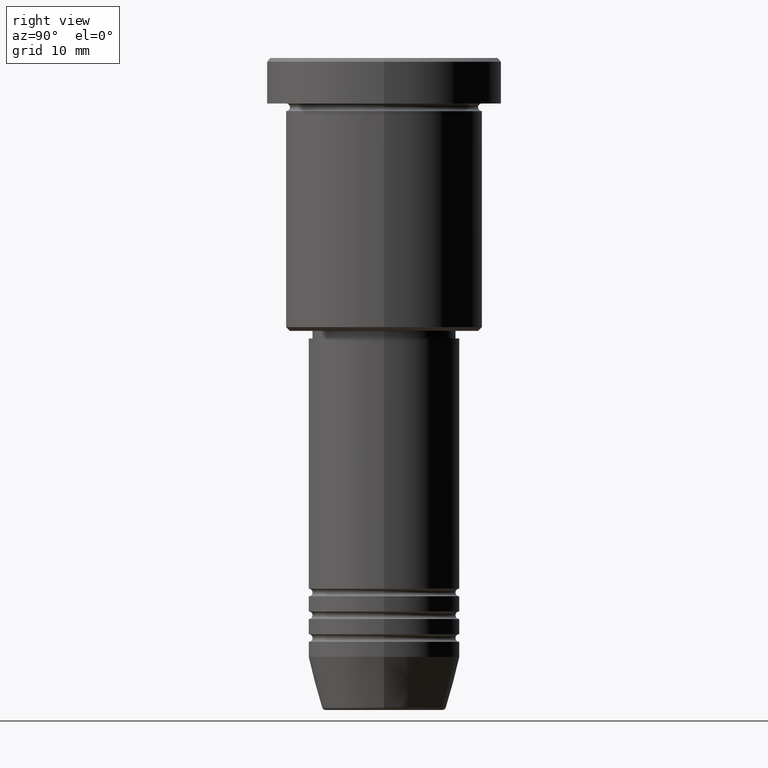
[diagram: clean part render]
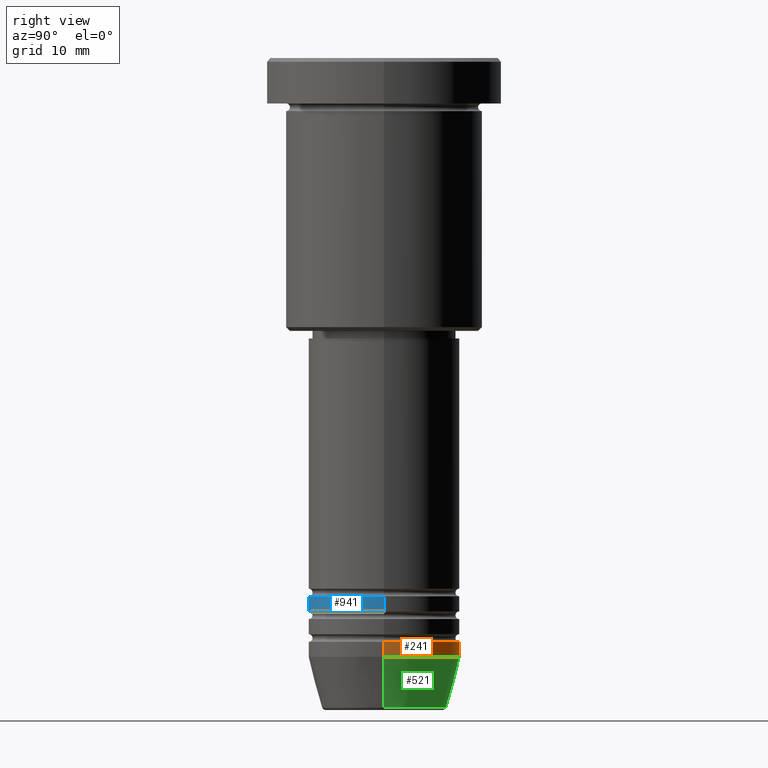
[diagram: same view with three faces highlighted in distinct colors, each labeled with its STEP entity id]
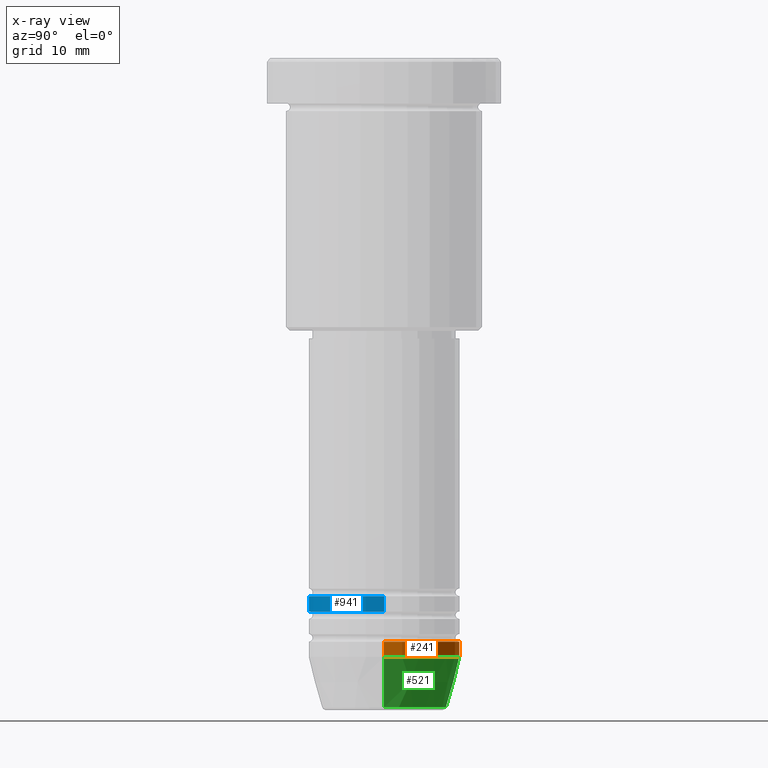
[diagram: x-ray of the same camera — body ghosted, the three highlighted faces saturated]
A machine part, right view with three faces highlighted in distinct colors.
The next image is the same camera in x-ray (body ghosted, the three faces saturated) — at least one of them is partly hidden behind the body in this view.
Their STEP definitions:

[orange] entity #241 — the highlighted cylindrical surface (partial cylindrical patch) has radius 10 mm, axis along (-0, -0, 1).
#42 = AXIS2_PLACEMENT_3D ( 'NONE', #940, #679, #1114 ) ;
#62 = EDGE_CURVE ( 'NONE', #364, #639, #532, .T. ) ;
#98 = EDGE_CURVE ( 'NONE', #588, #137, #180, .T. ) ;
#137 = VERTEX_POINT ( 'NONE', #989 ) ;
#139 = CARTESIAN_POINT ( 'NONE',  ( 0.000000000000000000, 0.000000000000000000, -79.00000000000000000 ) ) ;
#148 = EDGE_LOOP ( 'NONE', ( #765, #563, #612, #490 ) ) ;
#180 = LINE ( 'NONE', #358, #925 ) ;
#201 = CARTESIAN_POINT ( 'NONE',  ( -10.00000000000000000, 1.224646799147353256E-15, -77.00000000000000000 ) ) ;
#241 = ADVANCED_FACE ( 'NONE', ( #569 ), #1036, .T. ) ;
#304 = CARTESIAN_POINT ( 'NONE',  ( 10.00000000000000000, 0.000000000000000000, -79.00000000000000000 ) ) ;
#358 = CARTESIAN_POINT ( 'NONE',  ( 10.00000000000000000, 0.000000000000000000, 0.000000000000000000 ) ) ;
#360 = VECTOR ( 'NONE', #736, 1000.000000000000000 ) ;
#364 = VERTEX_POINT ( 'NONE', #696 ) ;
#448 = EDGE_CURVE ( 'NONE', #588, #364, #1032, .T. ) ;
#490 = ORIENTED_EDGE ( 'NONE', *, *, #98, .F. ) ;
#532 = LINE ( 'NONE', #814, #360 ) ;
#563 = ORIENTED_EDGE ( 'NONE', *, *, #62, .T. ) ;
#569 = FACE_OUTER_BOUND ( 'NONE', #148, .T. ) ;
#588 = VERTEX_POINT ( 'NONE', #304 ) ;
#612 = ORIENTED_EDGE ( 'NONE', *, *, #971, .F. ) ;
#630 = CIRCLE ( 'NONE', #1055, 10.00000000000000000 ) ;
#639 = VERTEX_POINT ( 'NONE', #201 ) ;
#679 = DIRECTION ( 'NONE',  ( -0.000000000000000000, -0.000000000000000000, 1.000000000000000000 ) ) ;
#696 = CARTESIAN_POINT ( 'NONE',  ( -10.00000000000000000, 1.224646799147353256E-15, -79.00000000000000000 ) ) ;
#713 = DIRECTION ( 'NONE',  ( -0.000000000000000000, -0.000000000000000000, 1.000000000000000000 ) ) ;
#731 = CARTESIAN_POINT ( 'NONE',  ( 0.000000000000000000, 0.000000000000000000, -77.00000000000000000 ) ) ;
#736 = DIRECTION ( 'NONE',  ( -0.000000000000000000, -0.000000000000000000, 1.000000000000000000 ) ) ;
#765 = ORIENTED_EDGE ( 'NONE', *, *, #448, .T. ) ;
#776 = DIRECTION ( 'NONE',  ( -0.000000000000000000, -0.000000000000000000, 1.000000000000000000 ) ) ;
#814 = CARTESIAN_POINT ( 'NONE',  ( -10.00000000000000000, 1.224646799147353256E-15, 0.000000000000000000 ) ) ;
#925 = VECTOR ( 'NONE', #713, 1000.000000000000000 ) ;
#934 = AXIS2_PLACEMENT_3D ( 'NONE', #139, #776, #1146 ) ;
#940 = CARTESIAN_POINT ( 'NONE',  ( 0.000000000000000000, 0.000000000000000000, 0.000000000000000000 ) ) ;
#971 = EDGE_CURVE ( 'NONE', #137, #639, #630, .T. ) ;
#989 = CARTESIAN_POINT ( 'NONE',  ( 10.00000000000000000, 0.000000000000000000, -77.00000000000000000 ) ) ;
#1032 = CIRCLE ( 'NONE', #934, 10.00000000000000000 ) ;
#1036 = CYLINDRICAL_SURFACE ( 'NONE', #42, 10.00000000000000000 ) ;
#1055 = AXIS2_PLACEMENT_3D ( 'NONE', #731, #1165, #1080 ) ;
#1080 = DIRECTION ( 'NONE',  ( 1.000000000000000000, 0.000000000000000000, 0.000000000000000000 ) ) ;
#1114 = DIRECTION ( 'NONE',  ( 1.000000000000000000, 0.000000000000000000, 0.000000000000000000 ) ) ;
#1146 = DIRECTION ( 'NONE',  ( 1.000000000000000000, 0.000000000000000000, 0.000000000000000000 ) ) ;
#1165 = DIRECTION ( 'NONE',  ( -0.000000000000000000, -0.000000000000000000, 1.000000000000000000 ) ) ;

[blue] entity #941 — the highlighted cylindrical surface (partial cylindrical patch) has radius 10 mm, axis along (-0, -0, 1).
#39 = CARTESIAN_POINT ( 'NONE',  ( 10.00000000000000000, 0.000000000000000000, -70.99999999999998579 ) ) ;
#64 = CIRCLE ( 'NONE', #668, 10.00000000000000000 ) ;
#69 = CARTESIAN_POINT ( 'NONE',  ( 0.000000000000000000, 0.000000000000000000, 0.000000000000000000 ) ) ;
#133 = ORIENTED_EDGE ( 'NONE', *, *, #791, .F. ) ;
#217 = ORIENTED_EDGE ( 'NONE', *, *, #964, .T. ) ;
#230 = VERTEX_POINT ( 'NONE', #39 ) ;
#253 = FACE_OUTER_BOUND ( 'NONE', #351, .T. ) ;
#272 = CARTESIAN_POINT ( 'NONE',  ( -10.00000000000000000, 1.224646799147353256E-15, -70.99999999999998579 ) ) ;
#285 = CARTESIAN_POINT ( 'NONE',  ( 10.00000000000000000, 0.000000000000000000, -72.99999999999998579 ) ) ;
#321 = DIRECTION ( 'NONE',  ( 1.000000000000000000, 0.000000000000000000, 0.000000000000000000 ) ) ;
#345 = LINE ( 'NONE', #805, #1177 ) ;
#351 = EDGE_LOOP ( 'NONE', ( #845, #217, #802, #133 ) ) ;
#378 = EDGE_CURVE ( 'NONE', #820, #525, #784, .T. ) ;
#449 = CARTESIAN_POINT ( 'NONE',  ( 0.000000000000000000, 0.000000000000000000, -72.99999999999998579 ) ) ;
#525 = VERTEX_POINT ( 'NONE', #272 ) ;
#548 = CIRCLE ( 'NONE', #817, 10.00000000000000000 ) ;
#591 = CARTESIAN_POINT ( 'NONE',  ( 0.000000000000000000, 0.000000000000000000, -70.99999999999998579 ) ) ;
#622 = CYLINDRICAL_SURFACE ( 'NONE', #860, 10.00000000000000000 ) ;
#668 = AXIS2_PLACEMENT_3D ( 'NONE', #449, #1099, #1086 ) ;
#681 = DIRECTION ( 'NONE',  ( -0.000000000000000000, -0.000000000000000000, 1.000000000000000000 ) ) ;
#716 = VECTOR ( 'NONE', #1150, 1000.000000000000000 ) ;
#719 = DIRECTION ( 'NONE',  ( 1.000000000000000000, 0.000000000000000000, 0.000000000000000000 ) ) ;
#784 = LINE ( 'NONE', #1066, #716 ) ;
#791 = EDGE_CURVE ( 'NONE', #525, #230, #548, .T. ) ;
#802 = ORIENTED_EDGE ( 'NONE', *, *, #950, .T. ) ;
#805 = CARTESIAN_POINT ( 'NONE',  ( 10.00000000000000000, 0.000000000000000000, 0.000000000000000000 ) ) ;
#817 = AXIS2_PLACEMENT_3D ( 'NONE', #591, #681, #321 ) ;
#820 = VERTEX_POINT ( 'NONE', #875 ) ;
#845 = ORIENTED_EDGE ( 'NONE', *, *, #378, .F. ) ;
#860 = AXIS2_PLACEMENT_3D ( 'NONE', #69, #896, #719 ) ;
#875 = CARTESIAN_POINT ( 'NONE',  ( -10.00000000000000000, 1.224646799147353256E-15, -72.99999999999998579 ) ) ;
#896 = DIRECTION ( 'NONE',  ( -0.000000000000000000, -0.000000000000000000, 1.000000000000000000 ) ) ;
#941 = ADVANCED_FACE ( 'NONE', ( #253 ), #622, .T. ) ;
#950 = EDGE_CURVE ( 'NONE', #1136, #230, #345, .T. ) ;
#964 = EDGE_CURVE ( 'NONE', #820, #1136, #64, .T. ) ;
#986 = DIRECTION ( 'NONE',  ( -0.000000000000000000, -0.000000000000000000, 1.000000000000000000 ) ) ;
#1066 = CARTESIAN_POINT ( 'NONE',  ( -10.00000000000000000, 1.224646799147353256E-15, 0.000000000000000000 ) ) ;
#1086 = DIRECTION ( 'NONE',  ( 1.000000000000000000, 0.000000000000000000, 0.000000000000000000 ) ) ;
#1099 = DIRECTION ( 'NONE',  ( -0.000000000000000000, -0.000000000000000000, 1.000000000000000000 ) ) ;
#1136 = VERTEX_POINT ( 'NONE', #285 ) ;
#1150 = DIRECTION ( 'NONE',  ( -0.000000000000000000, -0.000000000000000000, 1.000000000000000000 ) ) ;
#1177 = VECTOR ( 'NONE', #986, 1000.000000000000000 ) ;

[green] entity #521 — the highlighted conical surface has half-angle 15 deg.
#71 = DIRECTION ( 'NONE',  ( 1.000000000000000000, 0.000000000000000000, 0.000000000000000000 ) ) ;
#74 = VERTEX_POINT ( 'NONE', #191 ) ;
#102 = CIRCLE ( 'NONE', #258, 8.223655072137194821 ) ;
#131 = DIRECTION ( 'NONE',  ( -0.2588190451025213501, 3.169619151431772337E-17, 0.9659258262890680902 ) ) ;
#139 = CARTESIAN_POINT ( 'NONE',  ( 0.000000000000000000, 0.000000000000000000, -79.00000000000000000 ) ) ;
#164 = CARTESIAN_POINT ( 'NONE',  ( 0.000000000000000000, 0.000000000000000000, -79.00000000000000000 ) ) ;
#191 = CARTESIAN_POINT ( 'NONE',  ( 8.223655072137194821, 0.000000000000000000, -85.62940952255125637 ) ) ;
#226 = ORIENTED_EDGE ( 'NONE', *, *, #448, .F. ) ;
#258 = AXIS2_PLACEMENT_3D ( 'NONE', #407, #1056, #783 ) ;
#304 = CARTESIAN_POINT ( 'NONE',  ( 10.00000000000000000, 0.000000000000000000, -79.00000000000000000 ) ) ;
#348 = CARTESIAN_POINT ( 'NONE',  ( 10.00000000000000000, 0.000000000000000000, -79.00000000000000000 ) ) ;
#364 = VERTEX_POINT ( 'NONE', #696 ) ;
#376 = CARTESIAN_POINT ( 'NONE',  ( -8.223655072137194821, 1.115877042642912251E-15, -85.62940952255125637 ) ) ;
#407 = CARTESIAN_POINT ( 'NONE',  ( 0.000000000000000000, 0.000000000000000000, -85.62940952255125637 ) ) ;
#435 = DIRECTION ( 'NONE',  ( -0.000000000000000000, -0.000000000000000000, 1.000000000000000000 ) ) ;
#448 = EDGE_CURVE ( 'NONE', #588, #364, #1032, .T. ) ;
#500 = ORIENTED_EDGE ( 'NONE', *, *, #900, .T. ) ;
#521 = ADVANCED_FACE ( 'NONE', ( #645 ), #952, .T. ) ;
#556 = EDGE_CURVE ( 'NONE', #74, #588, #1174, .T. ) ;
#583 = LINE ( 'NONE', #954, #1159 ) ;
#588 = VERTEX_POINT ( 'NONE', #304 ) ;
#621 = ORIENTED_EDGE ( 'NONE', *, *, #556, .F. ) ;
#645 = FACE_OUTER_BOUND ( 'NONE', #1039, .T. ) ;
#682 = VECTOR ( 'NONE', #734, 1000.000000000000000 ) ;
#696 = CARTESIAN_POINT ( 'NONE',  ( -10.00000000000000000, 1.224646799147353256E-15, -79.00000000000000000 ) ) ;
#714 = VERTEX_POINT ( 'NONE', #376 ) ;
#733 = EDGE_CURVE ( 'NONE', #74, #714, #102, .T. ) ;
#734 = DIRECTION ( 'NONE',  ( 0.2588190451025213501, 0.000000000000000000, 0.9659258262890680902 ) ) ;
#776 = DIRECTION ( 'NONE',  ( -0.000000000000000000, -0.000000000000000000, 1.000000000000000000 ) ) ;
#783 = DIRECTION ( 'NONE',  ( 1.000000000000000000, 0.000000000000000000, 0.000000000000000000 ) ) ;
#900 = EDGE_CURVE ( 'NONE', #714, #364, #583, .T. ) ;
#934 = AXIS2_PLACEMENT_3D ( 'NONE', #139, #776, #1146 ) ;
#952 = CONICAL_SURFACE ( 'NONE', #1175, 10.00000000000000000, 0.2617993877991500740 ) ;
#954 = CARTESIAN_POINT ( 'NONE',  ( -10.00000000000000000, 1.224646799147353256E-15, -79.00000000000000000 ) ) ;
#1032 = CIRCLE ( 'NONE', #934, 10.00000000000000000 ) ;
#1039 = EDGE_LOOP ( 'NONE', ( #1181, #500, #226, #621 ) ) ;
#1056 = DIRECTION ( 'NONE',  ( -0.000000000000000000, -0.000000000000000000, 1.000000000000000000 ) ) ;
#1146 = DIRECTION ( 'NONE',  ( 1.000000000000000000, 0.000000000000000000, 0.000000000000000000 ) ) ;
#1159 = VECTOR ( 'NONE', #131, 1000.000000000000000 ) ;
#1174 = LINE ( 'NONE', #348, #682 ) ;
#1175 = AXIS2_PLACEMENT_3D ( 'NONE', #164, #435, #71 ) ;
#1181 = ORIENTED_EDGE ( 'NONE', *, *, #733, .T. ) ;